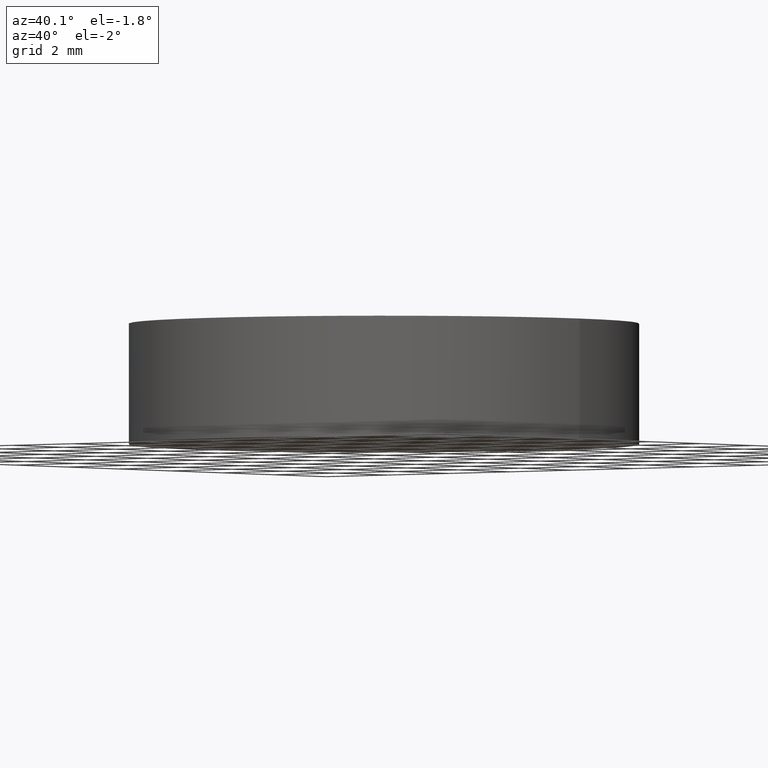
[diagram: clean part render]
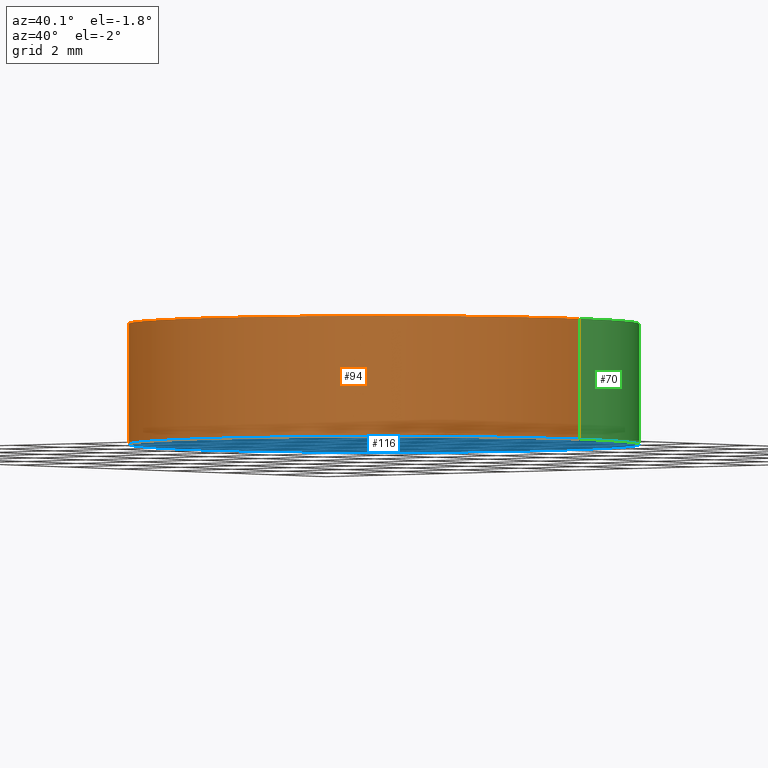
[diagram: same view with three faces highlighted in distinct colors, each labeled with its STEP entity id]
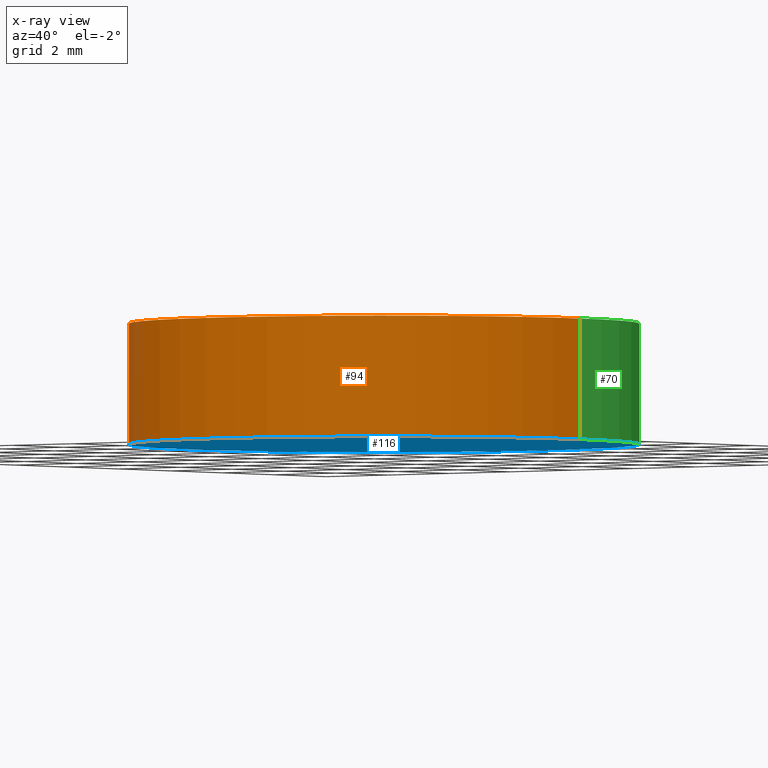
[diagram: x-ray of the same camera — body ghosted, the three highlighted faces saturated]
A machine part, auxiliary view with three faces highlighted in distinct colors.
The next image is the same camera in x-ray (body ghosted, the three faces saturated) — at least one of them is partly hidden behind the body in this view.
Their STEP definitions:

[orange] entity #94 — the highlighted cylindrical surface (partial cylindrical patch) has radius 6.35 mm, axis along (-0, -0, -1).
#8 = CARTESIAN_POINT ( 'NONE',  ( 6.349999999999999600, 7.776507174585692200E-016, 3.000000000000000000 ) ) ;
#15 = ORIENTED_EDGE ( 'NONE', *, *, #23, .F. ) ;
#17 = CYLINDRICAL_SURFACE ( 'NONE', #76, 6.349999999999999600 ) ;
#23 = EDGE_CURVE ( 'NONE', #110, #124, #82, .T. ) ;
#30 = CARTESIAN_POINT ( 'NONE',  ( -6.349999999999999600, 0.0000000000000000000, 3.000000000000000000 ) ) ;
#32 = DIRECTION ( 'NONE',  ( -0.0000000000000000000, -0.0000000000000000000, -1.000000000000000000 ) ) ;
#37 = DIRECTION ( 'NONE',  ( 1.000000000000000000, 0.0000000000000000000, 0.0000000000000000000 ) ) ;
#39 = CARTESIAN_POINT ( 'NONE',  ( 0.0000000000000000000, 0.0000000000000000000, 3.000000000000000000 ) ) ;
#42 = ORIENTED_EDGE ( 'NONE', *, *, #59, .T. ) ;
#44 = FACE_OUTER_BOUND ( 'NONE', #47, .T. ) ;
#47 = EDGE_LOOP ( 'NONE', ( #112, #15, #42, #90 ) ) ;
#51 = LINE ( 'NONE', #55, #126 ) ;
#52 = CARTESIAN_POINT ( 'NONE',  ( 0.0000000000000000000, 0.0000000000000000000, 0.0000000000000000000 ) ) ;
#54 = DIRECTION ( 'NONE',  ( -0.0000000000000000000, -0.0000000000000000000, -1.000000000000000000 ) ) ;
#55 = CARTESIAN_POINT ( 'NONE',  ( -6.349999999999999600, 0.0000000000000000000, 3.000000000000000000 ) ) ;
#57 = LINE ( 'NONE', #128, #107 ) ;
#59 = EDGE_CURVE ( 'NONE', #110, #71, #51, .T. ) ;
#68 = DIRECTION ( 'NONE',  ( 1.000000000000000000, 0.0000000000000000000, 0.0000000000000000000 ) ) ;
#71 = VERTEX_POINT ( 'NONE', #77 ) ;
#76 = AXIS2_PLACEMENT_3D ( 'NONE', #39, #109, #117 ) ;
#77 = CARTESIAN_POINT ( 'NONE',  ( -6.349999999999999600, 0.0000000000000000000, 0.0000000000000000000 ) ) ;
#78 = CARTESIAN_POINT ( 'NONE',  ( 0.0000000000000000000, 0.0000000000000000000, 3.000000000000000000 ) ) ;
#81 = EDGE_CURVE ( 'NONE', #124, #85, #57, .T. ) ;
#82 = CIRCLE ( 'NONE', #91, 6.349999999999999600 ) ;
#85 = VERTEX_POINT ( 'NONE', #138 ) ;
#90 = ORIENTED_EDGE ( 'NONE', *, *, #131, .T. ) ;
#91 = AXIS2_PLACEMENT_3D ( 'NONE', #78, #140, #68 ) ;
#94 = ADVANCED_FACE ( 'NONE', ( #44 ), #17, .T. ) ;
#107 = VECTOR ( 'NONE', #54, 1000.000000000000000 ) ;
#109 = DIRECTION ( 'NONE',  ( -0.0000000000000000000, -0.0000000000000000000, -1.000000000000000000 ) ) ;
#110 = VERTEX_POINT ( 'NONE', #30 ) ;
#111 = AXIS2_PLACEMENT_3D ( 'NONE', #52, #115, #37 ) ;
#112 = ORIENTED_EDGE ( 'NONE', *, *, #81, .F. ) ;
#115 = DIRECTION ( 'NONE',  ( 0.0000000000000000000, 0.0000000000000000000, 1.000000000000000000 ) ) ;
#117 = DIRECTION ( 'NONE',  ( -1.000000000000000000, 0.0000000000000000000, 0.0000000000000000000 ) ) ;
#122 = CIRCLE ( 'NONE', #111, 6.349999999999999600 ) ;
#124 = VERTEX_POINT ( 'NONE', #8 ) ;
#126 = VECTOR ( 'NONE', #32, 1000.000000000000000 ) ;
#128 = CARTESIAN_POINT ( 'NONE',  ( 6.349999999999999600, 7.776507174585692200E-016, 3.000000000000000000 ) ) ;
#131 = EDGE_CURVE ( 'NONE', #71, #85, #122, .T. ) ;
#138 = CARTESIAN_POINT ( 'NONE',  ( 6.349999999999999600, 7.776507174585692200E-016, 0.0000000000000000000 ) ) ;
#140 = DIRECTION ( 'NONE',  ( 0.0000000000000000000, 0.0000000000000000000, 1.000000000000000000 ) ) ;

[blue] entity #116 — the highlighted planar face has unit normal (0, 0, 1).
#2 = ORIENTED_EDGE ( 'NONE', *, *, #131, .F. ) ;
#18 = PLANE ( 'NONE',  #119 ) ;
#29 = DIRECTION ( 'NONE',  ( 0.0000000000000000000, 0.0000000000000000000, 1.000000000000000000 ) ) ;
#31 = DIRECTION ( 'NONE',  ( 1.000000000000000000, 0.0000000000000000000, 0.0000000000000000000 ) ) ;
#37 = DIRECTION ( 'NONE',  ( 1.000000000000000000, 0.0000000000000000000, 0.0000000000000000000 ) ) ;
#38 = CARTESIAN_POINT ( 'NONE',  ( 0.0000000000000000000, 0.0000000000000000000, 0.0000000000000000000 ) ) ;
#40 = DIRECTION ( 'NONE',  ( 0.0000000000000000000, 0.0000000000000000000, 1.000000000000000000 ) ) ;
#43 = EDGE_CURVE ( 'NONE', #85, #71, #80, .T. ) ;
#48 = AXIS2_PLACEMENT_3D ( 'NONE', #120, #40, #31 ) ;
#52 = CARTESIAN_POINT ( 'NONE',  ( 0.0000000000000000000, 0.0000000000000000000, 0.0000000000000000000 ) ) ;
#58 = EDGE_LOOP ( 'NONE', ( #2, #67 ) ) ;
#62 = FACE_OUTER_BOUND ( 'NONE', #58, .T. ) ;
#67 = ORIENTED_EDGE ( 'NONE', *, *, #43, .F. ) ;
#71 = VERTEX_POINT ( 'NONE', #77 ) ;
#77 = CARTESIAN_POINT ( 'NONE',  ( -6.349999999999999600, 0.0000000000000000000, 0.0000000000000000000 ) ) ;
#80 = CIRCLE ( 'NONE', #48, 6.349999999999999600 ) ;
#85 = VERTEX_POINT ( 'NONE', #138 ) ;
#96 = DIRECTION ( 'NONE',  ( 1.000000000000000000, 0.0000000000000000000, -0.0000000000000000000 ) ) ;
#111 = AXIS2_PLACEMENT_3D ( 'NONE', #52, #115, #37 ) ;
#115 = DIRECTION ( 'NONE',  ( 0.0000000000000000000, 0.0000000000000000000, 1.000000000000000000 ) ) ;
#116 = ADVANCED_FACE ( 'NONE', ( #62 ), #18, .F. ) ;
#119 = AXIS2_PLACEMENT_3D ( 'NONE', #38, #29, #96 ) ;
#120 = CARTESIAN_POINT ( 'NONE',  ( 0.0000000000000000000, 0.0000000000000000000, 0.0000000000000000000 ) ) ;
#122 = CIRCLE ( 'NONE', #111, 6.349999999999999600 ) ;
#131 = EDGE_CURVE ( 'NONE', #71, #85, #122, .T. ) ;
#138 = CARTESIAN_POINT ( 'NONE',  ( 6.349999999999999600, 7.776507174585692200E-016, 0.0000000000000000000 ) ) ;

[green] entity #70 — the highlighted cylindrical surface (partial cylindrical patch) has radius 6.35 mm, axis along (-0, -0, -1).
#3 = EDGE_CURVE ( 'NONE', #124, #110, #46, .T. ) ;
#8 = CARTESIAN_POINT ( 'NONE',  ( 6.349999999999999600, 7.776507174585692200E-016, 3.000000000000000000 ) ) ;
#9 = DIRECTION ( 'NONE',  ( -1.000000000000000000, 0.0000000000000000000, 0.0000000000000000000 ) ) ;
#11 = DIRECTION ( 'NONE',  ( 0.0000000000000000000, 0.0000000000000000000, 1.000000000000000000 ) ) ;
#13 = ORIENTED_EDGE ( 'NONE', *, *, #59, .F. ) ;
#20 = DIRECTION ( 'NONE',  ( -0.0000000000000000000, -0.0000000000000000000, -1.000000000000000000 ) ) ;
#22 = DIRECTION ( 'NONE',  ( 1.000000000000000000, 0.0000000000000000000, 0.0000000000000000000 ) ) ;
#24 = FACE_OUTER_BOUND ( 'NONE', #113, .T. ) ;
#25 = ORIENTED_EDGE ( 'NONE', *, *, #43, .T. ) ;
#30 = CARTESIAN_POINT ( 'NONE',  ( -6.349999999999999600, 0.0000000000000000000, 3.000000000000000000 ) ) ;
#31 = DIRECTION ( 'NONE',  ( 1.000000000000000000, 0.0000000000000000000, 0.0000000000000000000 ) ) ;
#32 = DIRECTION ( 'NONE',  ( -0.0000000000000000000, -0.0000000000000000000, -1.000000000000000000 ) ) ;
#40 = DIRECTION ( 'NONE',  ( 0.0000000000000000000, 0.0000000000000000000, 1.000000000000000000 ) ) ;
#41 = CARTESIAN_POINT ( 'NONE',  ( 0.0000000000000000000, 0.0000000000000000000, 3.000000000000000000 ) ) ;
#43 = EDGE_CURVE ( 'NONE', #85, #71, #80, .T. ) ;
#46 = CIRCLE ( 'NONE', #69, 6.349999999999999600 ) ;
#48 = AXIS2_PLACEMENT_3D ( 'NONE', #120, #40, #31 ) ;
#51 = LINE ( 'NONE', #55, #126 ) ;
#54 = DIRECTION ( 'NONE',  ( -0.0000000000000000000, -0.0000000000000000000, -1.000000000000000000 ) ) ;
#55 = CARTESIAN_POINT ( 'NONE',  ( -6.349999999999999600, 0.0000000000000000000, 3.000000000000000000 ) ) ;
#57 = LINE ( 'NONE', #128, #107 ) ;
#59 = EDGE_CURVE ( 'NONE', #110, #71, #51, .T. ) ;
#69 = AXIS2_PLACEMENT_3D ( 'NONE', #41, #11, #22 ) ;
#70 = ADVANCED_FACE ( 'NONE', ( #24 ), #129, .T. ) ;
#71 = VERTEX_POINT ( 'NONE', #77 ) ;
#77 = CARTESIAN_POINT ( 'NONE',  ( -6.349999999999999600, 0.0000000000000000000, 0.0000000000000000000 ) ) ;
#80 = CIRCLE ( 'NONE', #48, 6.349999999999999600 ) ;
#81 = EDGE_CURVE ( 'NONE', #124, #85, #57, .T. ) ;
#85 = VERTEX_POINT ( 'NONE', #138 ) ;
#98 = CARTESIAN_POINT ( 'NONE',  ( 0.0000000000000000000, 0.0000000000000000000, 3.000000000000000000 ) ) ;
#100 = AXIS2_PLACEMENT_3D ( 'NONE', #98, #20, #9 ) ;
#107 = VECTOR ( 'NONE', #54, 1000.000000000000000 ) ;
#110 = VERTEX_POINT ( 'NONE', #30 ) ;
#113 = EDGE_LOOP ( 'NONE', ( #118, #133, #25, #13 ) ) ;
#118 = ORIENTED_EDGE ( 'NONE', *, *, #3, .F. ) ;
#120 = CARTESIAN_POINT ( 'NONE',  ( 0.0000000000000000000, 0.0000000000000000000, 0.0000000000000000000 ) ) ;
#124 = VERTEX_POINT ( 'NONE', #8 ) ;
#126 = VECTOR ( 'NONE', #32, 1000.000000000000000 ) ;
#128 = CARTESIAN_POINT ( 'NONE',  ( 6.349999999999999600, 7.776507174585692200E-016, 3.000000000000000000 ) ) ;
#129 = CYLINDRICAL_SURFACE ( 'NONE', #100, 6.349999999999999600 ) ;
#133 = ORIENTED_EDGE ( 'NONE', *, *, #81, .T. ) ;
#138 = CARTESIAN_POINT ( 'NONE',  ( 6.349999999999999600, 7.776507174585692200E-016, 0.0000000000000000000 ) ) ;